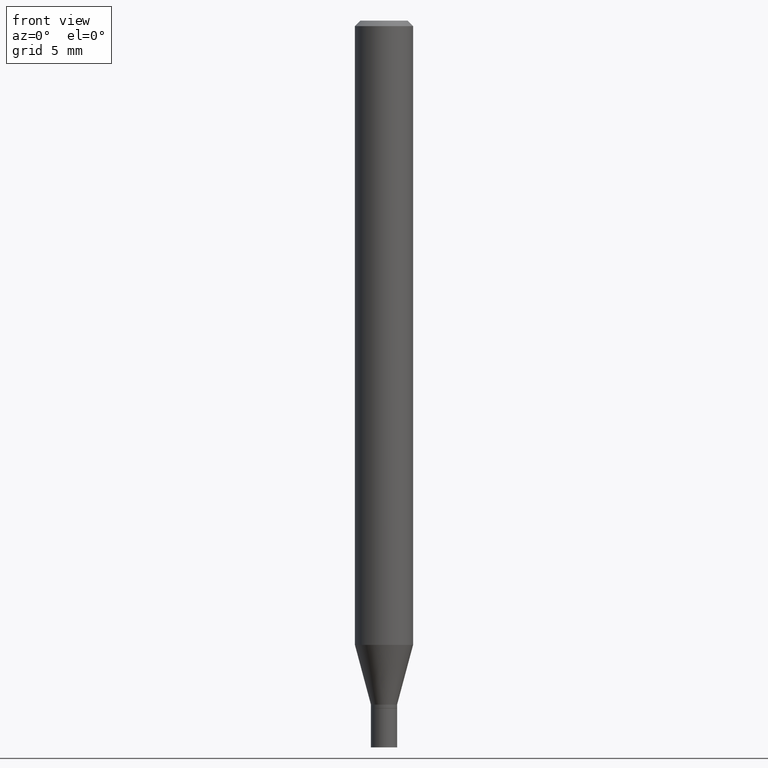
[diagram: clean part render]
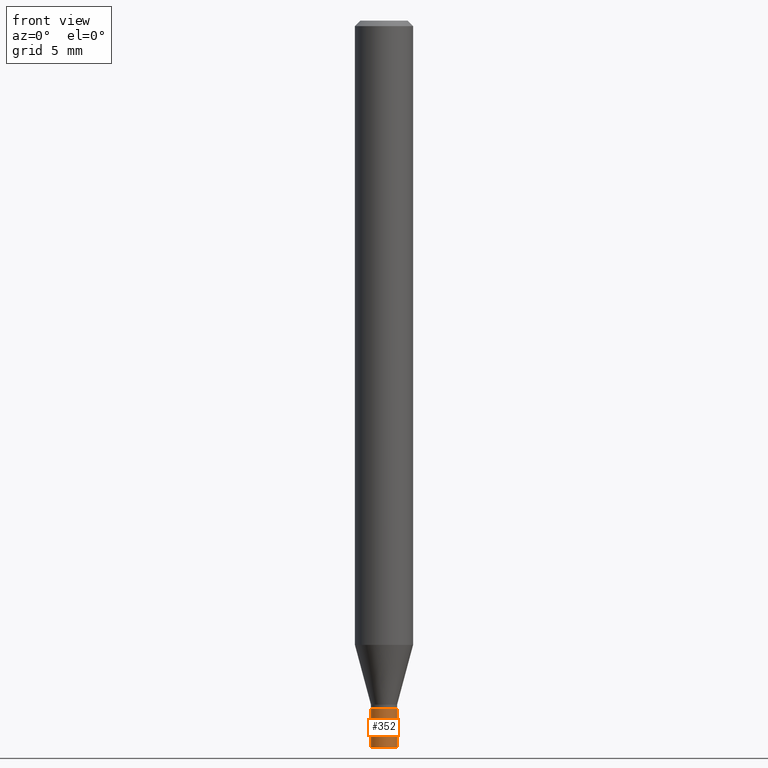
[diagram: same view with one face highlighted and labeled with its STEP entity id]
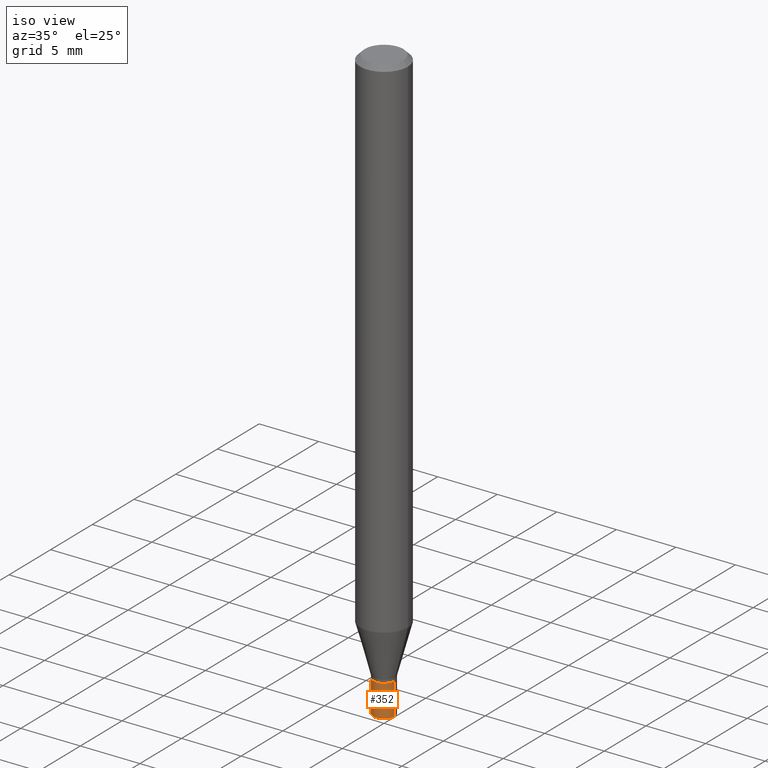
[diagram: same view with one face highlighted and labeled with its STEP entity id]
A machine part, front view. The second image highlights one B-rep face of the part: STEP entity #352.
A second angle (iso view) of the same face is appended — the face is thin or edge-on in the first view.
In plain terms, the highlighted cylindrical surface (edge-blend (fillet) strip) has radius 0.9004 mm, axis along (-0, 0, 1).
Its self-contained STEP definition (entity closure, byte-faithful):
#3 = ORIENTED_EDGE ( 'NONE', *, *, #271, .F. ) ;
#7 = VERTEX_POINT ( 'NONE', #77 ) ;
#15 = ORIENTED_EDGE ( 'NONE', *, *, #173, .T. ) ;
#31 = ORIENTED_EDGE ( 'NONE', *, *, #364, .F. ) ;
#57 = ORIENTED_EDGE ( 'NONE', *, *, #87, .T. ) ;
#69 = VECTOR ( 'NONE', #262, 39.37007874015748143 ) ;
#70 = DIRECTION ( 'NONE',  ( -2.445468806185136877E-29, 3.491481338843145188E-15, 1.000000000000000000 ) ) ;
#74 = AXIS2_PLACEMENT_3D ( 'NONE', #111, #98, #356 ) ;
#77 = CARTESIAN_POINT ( 'NONE',  ( -0.03545000000000000234, -6.435521382526263788E-15, -1.862200000000000077 ) ) ;
#78 = CARTESIAN_POINT ( 'NONE',  ( 0.03545000000000000234, -6.749382576117683733E-15, -1.862200000000000077 ) ) ;
#87 = EDGE_CURVE ( 'NONE', #270, #323, #125, .T. ) ;
#98 = DIRECTION ( 'NONE',  ( -2.445468806185136597E-29, 3.491481338843145583E-15, 1.000000000000000000 ) ) ;
#103 = CARTESIAN_POINT ( 'NONE',  ( -0.03545000000000000234, -6.435521382526263788E-15, -1.968500000000000139 ) ) ;
#111 = CARTESIAN_POINT ( 'NONE',  ( 0.000000000000000000, 0.000000000000000000, 0.000000000000000000 ) ) ;
#125 = LINE ( 'NONE', #451, #69 ) ;
#131 = EDGE_LOOP ( 'NONE', ( #31, #15, #57, #3 ) ) ;
#173 = EDGE_CURVE ( 'NONE', #251, #270, #347, .T. ) ;
#180 = CARTESIAN_POINT ( 'NONE',  ( -0.03545000000000000234, 2.518873998269555325E-16, -1.743762489495364089E-30 ) ) ;
#198 = CYLINDRICAL_SURFACE ( 'NONE', #74, 0.03545000000000000234 ) ;
#207 = DIRECTION ( 'NONE',  ( 1.000000000000000000, -6.982962677686254089E-15, 0.000000000000000000 ) ) ;
#210 = AXIS2_PLACEMENT_3D ( 'NONE', #315, #243, #382 ) ;
#218 = AXIS2_PLACEMENT_3D ( 'NONE', #426, #350, #207 ) ;
#232 = FACE_OUTER_BOUND ( 'NONE', #131, .T. ) ;
#243 = DIRECTION ( 'NONE',  ( -2.445468806185136597E-29, 3.491481338843145583E-15, 1.000000000000000000 ) ) ;
#245 = CIRCLE ( 'NONE', #218, 0.03545000000000000234 ) ;
#251 = VERTEX_POINT ( 'NONE', #103 ) ;
#262 = DIRECTION ( 'NONE',  ( -2.445468806185136877E-29, 3.491481338843145188E-15, 1.000000000000000000 ) ) ;
#270 = VERTEX_POINT ( 'NONE', #425 ) ;
#271 = EDGE_CURVE ( 'NONE', #7, #323, #245, .T. ) ;
#315 = CARTESIAN_POINT ( 'NONE',  ( 4.813905344975441835E-29, -6.872981015512731707E-15, -1.968500000000000139 ) ) ;
#323 = VERTEX_POINT ( 'NONE', #78 ) ;
#347 = CIRCLE ( 'NONE', #210, 0.03545000000000000234 ) ;
#350 = DIRECTION ( 'NONE',  ( -2.445468806185136597E-29, 3.491481338843145583E-15, 1.000000000000000000 ) ) ;
#351 = LINE ( 'NONE', #180, #421 ) ;
#352 = ADVANCED_FACE ( 'NONE', ( #232 ), #198, .T. ) ;
#356 = DIRECTION ( 'NONE',  ( 1.000000000000000000, -6.982962677686266711E-15, 4.876176775795935793E-29 ) ) ;
#364 = EDGE_CURVE ( 'NONE', #251, #7, #351, .T. ) ;
#382 = DIRECTION ( 'NONE',  ( 1.000000000000000000, -6.982962677686254089E-15, 0.000000000000000000 ) ) ;
#421 = VECTOR ( 'NONE', #70, 39.37007874015748143 ) ;
#425 = CARTESIAN_POINT ( 'NONE',  ( 0.03545000000000000234, -7.120527042436709591E-15, -1.968500000000000139 ) ) ;
#426 = CARTESIAN_POINT ( 'NONE',  ( 4.553952010877962015E-29, -6.501836549193706638E-15, -1.862200000000000077 ) ) ;
#451 = CARTESIAN_POINT ( 'NONE',  ( 0.03545000000000000234, -2.475460269239781793E-16, 1.728604667019659440E-30 ) ) ;